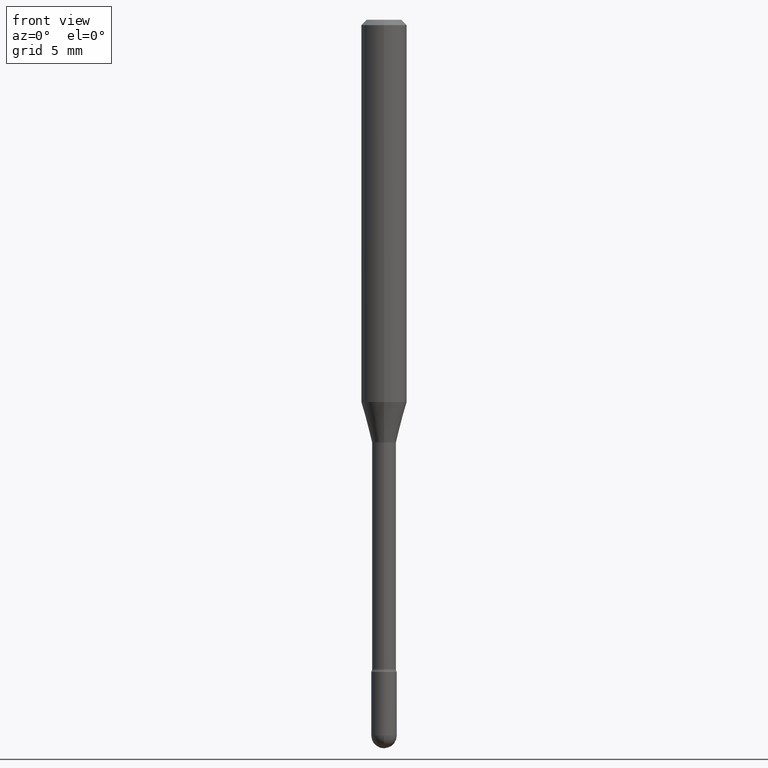
[diagram: clean part render]
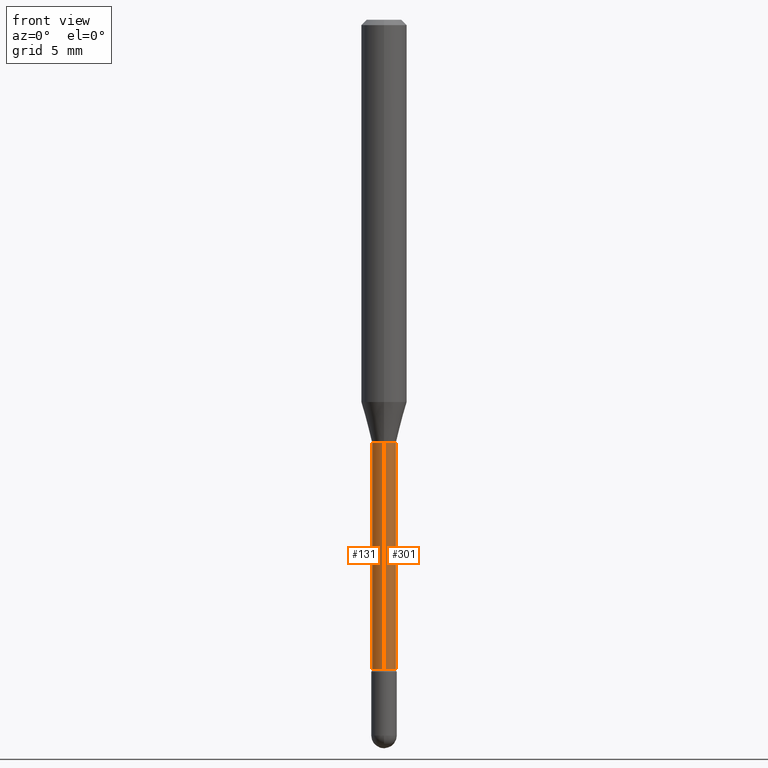
[diagram: same view with one multi-face feature highlighted, each face labeled with its STEP entity id]
A machine part, front view. The highlighted faces form ONE feature: a constant-radius fillet chain: 2 tangent blend faces with common blend radius 0.8357 mm. The faces share edges in the B-rep.
Their STEP definitions:
[1] entity #301 (Cylinder):
#23 = FACE_OUTER_BOUND ( 'NONE', #321, .T. ) ;
#30 = CARTESIAN_POINT ( 'NONE',  ( -1.169113584055446105E-44, 1.669184350826100908E-30, 4.780733988912460139E-16 ) ) ;
#34 = CARTESIAN_POINT ( 'NONE',  ( 2.412292587905979007E-16, 0.03289999999999382307, -1.782345589506696193 ) ) ;
#72 = CARTESIAN_POINT ( 'NONE',  ( 2.337685600650730998E-16, 0.03290000000000002645, 3.632050233920016564E-16 ) ) ;
#80 = DIRECTION ( 'NONE',  ( -2.445497683573463397E-29, 3.491439984779462686E-15, 1.000000000000000000 ) ) ;
#97 = DIRECTION ( 'NONE',  ( -6.982962677686266711E-15, -1.000000000000000000, 4.151744671222284594E-15 ) ) ;
#149 = EDGE_CURVE ( 'NONE', #364, #366, #443, .T. ) ;
#154 = CARTESIAN_POINT ( 'NONE',  ( 2.841606651113517657E-29, -4.056965234256767798E-15, -1.161974787463810888 ) ) ;
#155 = VERTEX_POINT ( 'NONE', #458 ) ;
#203 = CARTESIAN_POINT ( 'NONE',  ( -2.297394720958497537E-16, -0.03290000000000405794, -1.161974787463810888 ) ) ;
#206 = EDGE_CURVE ( 'NONE', #503, #366, #256, .T. ) ;
#246 = CARTESIAN_POINT ( 'NONE',  ( 4.358722010466005313E-29, -6.222952657899001696E-15, -1.782345589506696193 ) ) ;
#249 = DIRECTION ( 'NONE',  ( -6.982962677686266711E-15, -1.000000000000000000, 3.491439984779463870E-15 ) ) ;
#251 = AXIS2_PLACEMENT_3D ( 'NONE', #154, #266, #97 ) ;
#256 = LINE ( 'NONE', #72, #557 ) ;
#266 = DIRECTION ( 'NONE',  ( -2.445497683573463397E-29, 3.491439984779462686E-15, 1.000000000000000000 ) ) ;
#284 = DIRECTION ( 'NONE',  ( -6.982962677686266711E-15, -1.000000000000000000, 0.000000000000000000 ) ) ;
#301 = ADVANCED_FACE ( 'NONE', ( #23 ), #461, .T. ) ;
#319 = VECTOR ( 'NONE', #395, 39.37007874015748143 ) ;
#321 = EDGE_LOOP ( 'NONE', ( #460, #522, #361, #383 ) ) ;
#330 = CARTESIAN_POINT ( 'NONE',  ( 2.337685600651167829E-16, 0.03289999999999595331, -1.161974787463811110 ) ) ;
#352 = EDGE_CURVE ( 'NONE', #155, #503, #543, .T. ) ;
#361 = ORIENTED_EDGE ( 'NONE', *, *, #149, .F. ) ;
#364 = VERTEX_POINT ( 'NONE', #203 ) ;
#366 = VERTEX_POINT ( 'NONE', #330 ) ;
#383 = ORIENTED_EDGE ( 'NONE', *, *, #416, .F. ) ;
#393 = AXIS2_PLACEMENT_3D ( 'NONE', #30, #429, #249 ) ;
#395 = DIRECTION ( 'NONE',  ( -2.445497683573463397E-29, 3.491439984779462686E-15, 1.000000000000000000 ) ) ;
#416 = EDGE_CURVE ( 'NONE', #155, #364, #510, .T. ) ;
#419 = DIRECTION ( 'NONE',  ( -2.445497683573463397E-29, 3.491439984779462686E-15, 1.000000000000000000 ) ) ;
#429 = DIRECTION ( 'NONE',  ( -2.445497683573463397E-29, 3.491439984779462686E-15, 1.000000000000000000 ) ) ;
#443 = CIRCLE ( 'NONE', #251, 0.03289999999999999869 ) ;
#458 = CARTESIAN_POINT ( 'NONE',  ( -2.297394720958349133E-16, -0.03290000000000627145, -1.782345589506696193 ) ) ;
#460 = ORIENTED_EDGE ( 'NONE', *, *, #352, .T. ) ;
#461 = CYLINDRICAL_SURFACE ( 'NONE', #393, 0.03290000000000002645 ) ;
#470 = CARTESIAN_POINT ( 'NONE',  ( -2.297394720958783499E-16, -0.03290000000000002645, 5.929417743904905687E-16 ) ) ;
#503 = VERTEX_POINT ( 'NONE', #34 ) ;
#510 = LINE ( 'NONE', #470, #319 ) ;
#522 = ORIENTED_EDGE ( 'NONE', *, *, #206, .T. ) ;
#542 = AXIS2_PLACEMENT_3D ( 'NONE', #246, #419, #284 ) ;
#543 = CIRCLE ( 'NONE', #542, 0.03290000000000004726 ) ;
#557 = VECTOR ( 'NONE', #80, 39.37007874015748143 ) ;
[2] entity #131 (Cylinder):
#34 = CARTESIAN_POINT ( 'NONE',  ( 2.412292587905979007E-16, 0.03289999999999382307, -1.782345589506696193 ) ) ;
#72 = CARTESIAN_POINT ( 'NONE',  ( 2.337685600650730998E-16, 0.03290000000000002645, 3.632050233920016564E-16 ) ) ;
#80 = DIRECTION ( 'NONE',  ( -2.445497683573463397E-29, 3.491439984779462686E-15, 1.000000000000000000 ) ) ;
#89 = DIRECTION ( 'NONE',  ( -2.445497683573463397E-29, 3.491439984779462686E-15, 1.000000000000000000 ) ) ;
#102 = AXIS2_PLACEMENT_3D ( 'NONE', #437, #89, #274 ) ;
#105 = CYLINDRICAL_SURFACE ( 'NONE', #451, 0.03290000000000002645 ) ;
#108 = EDGE_CURVE ( 'NONE', #503, #155, #283, .T. ) ;
#131 = ADVANCED_FACE ( 'NONE', ( #223 ), #105, .T. ) ;
#151 = ORIENTED_EDGE ( 'NONE', *, *, #206, .F. ) ;
#155 = VERTEX_POINT ( 'NONE', #458 ) ;
#180 = CARTESIAN_POINT ( 'NONE',  ( -1.169113584055446105E-44, 1.669184350826100908E-30, 4.780733988912460139E-16 ) ) ;
#200 = EDGE_LOOP ( 'NONE', ( #151, #531, #440, #415 ) ) ;
#203 = CARTESIAN_POINT ( 'NONE',  ( -2.297394720958497537E-16, -0.03290000000000405794, -1.161974787463810888 ) ) ;
#206 = EDGE_CURVE ( 'NONE', #503, #366, #256, .T. ) ;
#220 = EDGE_CURVE ( 'NONE', #366, #364, #348, .T. ) ;
#223 = FACE_OUTER_BOUND ( 'NONE', #200, .T. ) ;
#253 = CARTESIAN_POINT ( 'NONE',  ( 4.358722010466005313E-29, -6.222952657899001696E-15, -1.782345589506696193 ) ) ;
#256 = LINE ( 'NONE', #72, #557 ) ;
#263 = DIRECTION ( 'NONE',  ( -2.445497683573463397E-29, 3.491439984779462686E-15, 1.000000000000000000 ) ) ;
#274 = DIRECTION ( 'NONE',  ( -6.982962677686266711E-15, -1.000000000000000000, 4.151744671222284594E-15 ) ) ;
#283 = CIRCLE ( 'NONE', #463, 0.03290000000000004726 ) ;
#319 = VECTOR ( 'NONE', #395, 39.37007874015748143 ) ;
#327 = DIRECTION ( 'NONE',  ( -2.445497683573463397E-29, 3.491439984779462686E-15, 1.000000000000000000 ) ) ;
#330 = CARTESIAN_POINT ( 'NONE',  ( 2.337685600651167829E-16, 0.03289999999999595331, -1.161974787463811110 ) ) ;
#348 = CIRCLE ( 'NONE', #102, 0.03289999999999999869 ) ;
#364 = VERTEX_POINT ( 'NONE', #203 ) ;
#366 = VERTEX_POINT ( 'NONE', #330 ) ;
#395 = DIRECTION ( 'NONE',  ( -2.445497683573463397E-29, 3.491439984779462686E-15, 1.000000000000000000 ) ) ;
#415 = ORIENTED_EDGE ( 'NONE', *, *, #220, .F. ) ;
#416 = EDGE_CURVE ( 'NONE', #155, #364, #510, .T. ) ;
#437 = CARTESIAN_POINT ( 'NONE',  ( 2.841606651113517657E-29, -4.056965234256767798E-15, -1.161974787463810888 ) ) ;
#440 = ORIENTED_EDGE ( 'NONE', *, *, #416, .T. ) ;
#451 = AXIS2_PLACEMENT_3D ( 'NONE', #180, #327, #539 ) ;
#458 = CARTESIAN_POINT ( 'NONE',  ( -2.297394720958349133E-16, -0.03290000000000627145, -1.782345589506696193 ) ) ;
#463 = AXIS2_PLACEMENT_3D ( 'NONE', #253, #263, #512 ) ;
#470 = CARTESIAN_POINT ( 'NONE',  ( -2.297394720958783499E-16, -0.03290000000000002645, 5.929417743904905687E-16 ) ) ;
#503 = VERTEX_POINT ( 'NONE', #34 ) ;
#510 = LINE ( 'NONE', #470, #319 ) ;
#512 = DIRECTION ( 'NONE',  ( -6.982962677686266711E-15, -1.000000000000000000, 0.000000000000000000 ) ) ;
#531 = ORIENTED_EDGE ( 'NONE', *, *, #108, .T. ) ;
#539 = DIRECTION ( 'NONE',  ( -6.982962677686266711E-15, -1.000000000000000000, 3.491439984779463870E-15 ) ) ;
#557 = VECTOR ( 'NONE', #80, 39.37007874015748143 ) ;